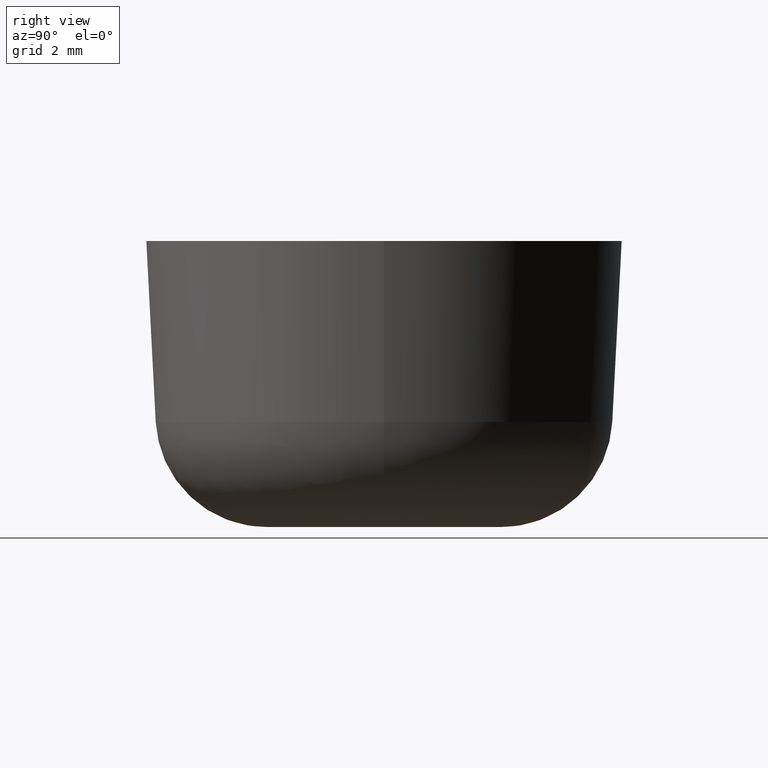
[diagram: clean part render]
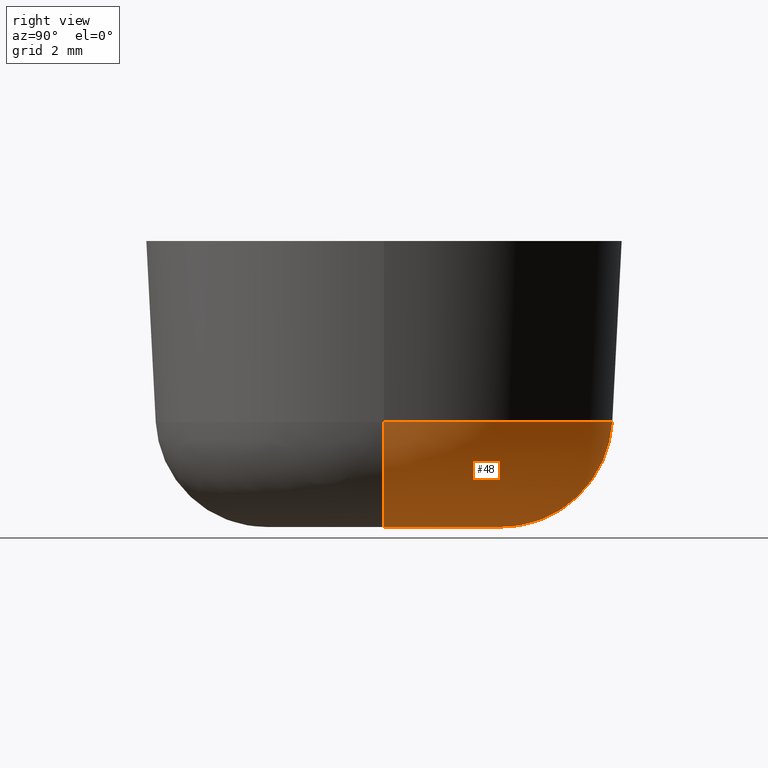
[diagram: same view with one face highlighted and labeled with its STEP entity id]
A machine part, right view. The second image highlights one B-rep face of the part: STEP entity #48.
In plain terms, the highlighted face is a freeform B-spline surface patch.
Its self-contained STEP definition (entity closure, byte-faithful):
#48=ADVANCED_FACE('',(#135),#134,.T.);
#134=( BOUNDED_SURFACE() B_SPLINE_SURFACE( 2,2,((#228,#229,#230,#231,#232),(#233,#234,#235,#236,#237),(#238,#239,#240,#241,#242),(#243,#244,#245,#246,#247),(#248,#249,#250,#251,#252)), .UNSPECIFIED.,.F.,.F.,.F.) B_SPLINE_SURFACE_WITH_KNOTS((3,2,3),(3,2,3),(0.00000000000E+00,5.00000000000E-01,1.00000000000E+00),(0.00000000000E+00,5.00000000000E-01,1.00000000000E+00), .UNSPECIFIED. ) GEOMETRIC_REPRESENTATION_ITEM() RATIONAL_B_SPLINE_SURFACE(((1.00000000000E+00,7.26453721727E-01,1.00000000000E+00,7.26453721727E-01,1.00000000000E+00),(7.07106781187E-01,5.13680352851E-01,7.07106781187E-01,5.13680352851E-01,7.07106781187E-01),(1.00000000000E+00,7.26453721727E-01,1.00000000000E+00,7.26453721727E-01,1.00000000000E+00),(7.07106781187E-01,5.13680352851E-01,7.07106781187E-01,5.13680352851E-01,7.07106781187E-01),(1.00000000000E+00,7.26453721727E-01,1.00000000000E+00,7.26453721727E-01,1.00000000000E+00))) REPRESENTATION_ITEM('') SURFACE() );
#135=FACE_OUTER_BOUND('',#253,.T.);
#228=CARTESIAN_POINT('',(-7.18365860730E+00,-2.90545406888E-20,-5.69414506868E+00));
#229=CARTESIAN_POINT('',(-7.00000000000E+00,-2.83117274832E-20,-9.00000000000E+00));
#230=CARTESIAN_POINT('',(-3.68904737108E+00,-1.49204719775E-20,-9.00000000000E+00));
#231=CARTESIAN_POINT('',(-3.78094742155E-01,-1.52921647181E-21,-9.00000000000E+00));
#232=CARTESIAN_POINT('',(-1.94436134859E-01,-7.86403266144E-22,-5.69414506868E+00));
#233=CARTESIAN_POINT('',(-7.18365860730E+00,7.18365860730E+00,-5.69414506868E+00));
#234=CARTESIAN_POINT('',(-7.00000000000E+00,7.00000000000E+00,-9.00000000000E+00));
#235=CARTESIAN_POINT('',(-3.68904737108E+00,3.68904737108E+00,-9.00000000000E+00));
#236=CARTESIAN_POINT('',(-3.78094742155E-01,3.78094742155E-01,-9.00000000000E+00));
#237=CARTESIAN_POINT('',(-1.94436134859E-01,1.94436134859E-01,-5.69414506868E+00));
#238=CARTESIAN_POINT('',(1.04021204443E-14,7.18365860730E+00,-5.69414506868E+00));
#239=CARTESIAN_POINT('',(1.04133670334E-14,7.00000000000E+00,-9.00000000000E+00));
#240=CARTESIAN_POINT('',(1.06161178016E-14,3.68904737108E+00,-9.00000000000E+00));
#241=CARTESIAN_POINT('',(1.08188685699E-14,3.78094742155E-01,-9.00000000000E+00));
#242=CARTESIAN_POINT('',(1.08301151589E-14,1.94436134859E-01,-5.69414506868E+00));
#243=CARTESIAN_POINT('',(7.18365860730E+00,7.18365860730E+00,-5.69414506868E+00));
#244=CARTESIAN_POINT('',(7.00000000000E+00,7.00000000000E+00,-9.00000000000E+00));
#245=CARTESIAN_POINT('',(3.68904737108E+00,3.68904737108E+00,-9.00000000000E+00));
#246=CARTESIAN_POINT('',(3.78094742155E-01,3.78094742155E-01,-9.00000000000E+00));
#247=CARTESIAN_POINT('',(1.94436134859E-01,1.94436134859E-01,-5.69414506868E+00));
#248=CARTESIAN_POINT('',(7.18365860730E+00,8.79773506500E-16,-5.69414506868E+00));
#249=CARTESIAN_POINT('',(7.00000000000E+00,8.57281071131E-16,-9.00000000000E+00));
#250=CARTESIAN_POINT('',(3.68904737108E+00,4.51792925961E-16,-9.00000000000E+00));
#251=CARTESIAN_POINT('',(3.78094742155E-01,4.63047807919E-17,-9.00000000000E+00));
#252=CARTESIAN_POINT('',(1.94436134859E-01,2.38123454226E-17,-5.69414506868E+00));
#253=EDGE_LOOP('',(#308,#309,#310,#311));
#308=ORIENTED_EDGE('',*,*,#339,.T.);
#309=ORIENTED_EDGE('',*,*,#336,.T.);
#310=ORIENTED_EDGE('',*,*,#328,.F.);
#311=ORIENTED_EDGE('',*,*,#338,.F.);
#328=EDGE_CURVE('',#398,#399,#400,.T.);
#336=EDGE_CURVE('',#450,#399,#451,.T.);
#338=EDGE_CURVE('',#457,#398,#464,.T.);
#339=EDGE_CURVE('',#457,#450,#470,.T.);
#398=VERTEX_POINT('',#528);
#399=VERTEX_POINT('',#529);
#400=CIRCLE('',#533,3.68904737108E+00);
#450=VERTEX_POINT('',#556);
#451=(BOUNDED_CURVE() B_SPLINE_CURVE(2,(#557,#558,#559),.UNSPECIFIED.,.F.,.F.) B_SPLINE_CURVE_WITH_KNOTS((3,3),(0.00000000000E+00,5.00000000000E-01),.UNSPECIFIED.) CURVE() GEOMETRIC_REPRESENTATION_ITEM() RATIONAL_B_SPLINE_CURVE((1.00000000000E+00,7.26453721727E-01,1.00000000000E+00)) REPRESENTATION_ITEM('') );
#457=VERTEX_POINT('',#560);
#464=(BOUNDED_CURVE() B_SPLINE_CURVE(3,(#565,#566,#567,#568,#569),.UNSPECIFIED.,.F.,.F.) B_SPLINE_CURVE_WITH_KNOTS((4,1,4),(0.00000000000E+00,2.50000125934E-01,5.00000220683E-01),.UNSPECIFIED.) CURVE() GEOMETRIC_REPRESENTATION_ITEM() RATIONAL_B_SPLINE_CURVE((1.00000000000E+00,1.00000000000E+00,1.00000000000E+00,1.00000000000E+00,1.00000000000E+00)) REPRESENTATION_ITEM('') );
#470=CIRCLE('',#573,7.18365860730E+00);
#528=CARTESIAN_POINT('',(-3.68904737108E+00,0.00000000000E+00,-9.00000000000E+00));
#529=CARTESIAN_POINT('',(3.68904737108E+00,4.44089209850E-16,-9.00000000000E+00));
#530=CARTESIAN_POINT('',(1.06581410364E-14,0.00000000000E+00,-9.00000000000E+00));
#531=DIRECTION('',(-0.00000000000E+00,0.00000000000E+00,-1.00000000000E+00));
#532=DIRECTION('',(-1.00000000000E+00,-1.22460635382E-16,0.00000000000E+00));
#533=AXIS2_PLACEMENT_3D('',#530,#531,#532);
#556=CARTESIAN_POINT('',(7.18365860730E+00,2.96059473233E-16,-5.69414506868E+00));
#557=CARTESIAN_POINT('',(7.18365860730E+00,-8.79715397419E-16,-5.69414506868E+00));
#558=CARTESIAN_POINT('',(7.00000000000E+00,-8.57224447676E-16,-9.00000000000E+00));
#559=CARTESIAN_POINT('',(3.68904737108E+00,-4.51763085017E-16,-9.00000000000E+00));
#560=CARTESIAN_POINT('',(-7.18365860730E+00,0.00000000000E+00,-5.69414506868E+00));
#565=CARTESIAN_POINT('',(-7.18365860730E+00,5.92118946467E-16,-5.69414506868E+00));
#566=CARTESIAN_POINT('',(-7.14175381409E+00,6.51618793040E-16,-6.56962388523E+00));
#567=CARTESIAN_POINT('',(-6.33497368721E+00,7.20254524099E-16,-8.29700410815E+00));
#568=CARTESIAN_POINT('',(-4.56550048257E+00,6.51618783488E-16,-9.00672307920E+00));
#569=CARTESIAN_POINT('',(-3.68904524788E+00,5.92118607597E-16,-9.00000000000E+00));
#570=CARTESIAN_POINT('',(1.06581410364E-14,0.00000000000E+00,-5.69414506868E+00));
#571=DIRECTION('',(-0.00000000000E+00,0.00000000000E+00,-1.00000000000E+00));
#572=DIRECTION('',(-1.00000000000E+00,-1.22460635382E-16,0.00000000000E+00));
#573=AXIS2_PLACEMENT_3D('',#570,#571,#572);